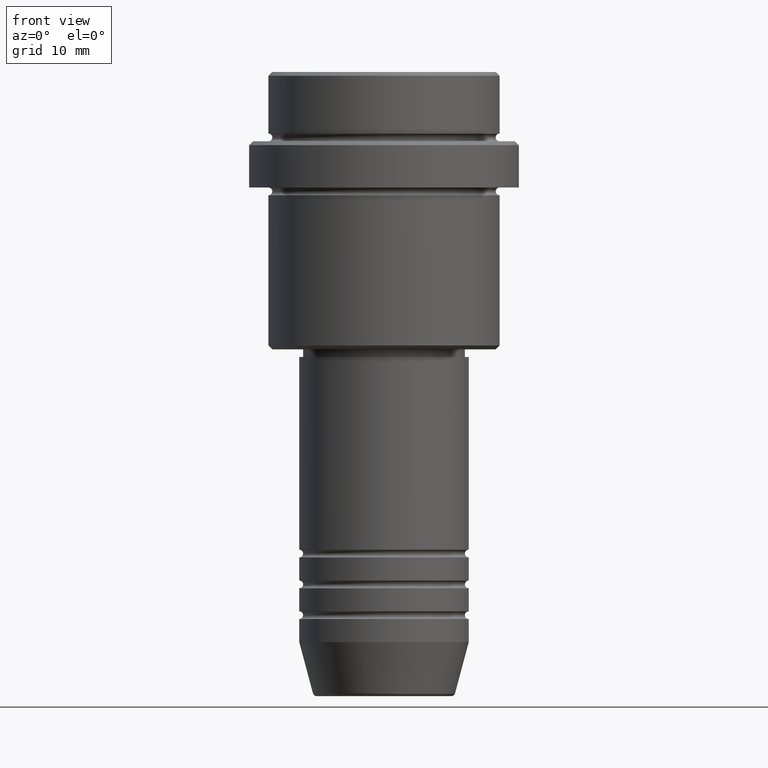
[diagram: clean part render]
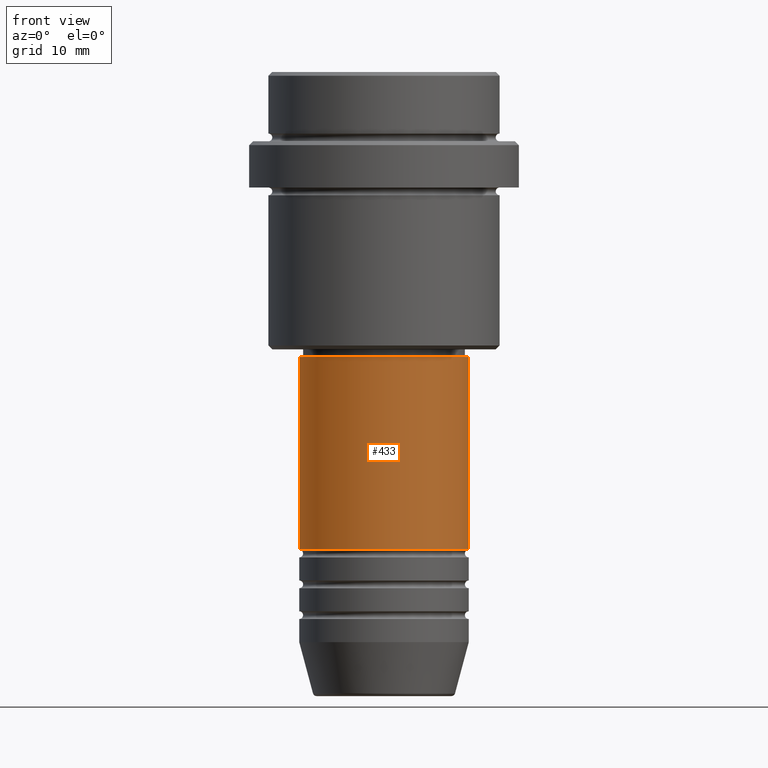
[diagram: same view with one face highlighted and labeled with its STEP entity id]
A machine part, front view. The second image highlights one B-rep face of the part: STEP entity #433.
In plain terms, the highlighted cylindrical surface (partial cylindrical patch) has radius 11 mm, axis along (-0, -0, 1).
Its self-contained STEP definition (entity closure, byte-faithful):
#19 = AXIS2_PLACEMENT_3D ( 'NONE', #98, #217, #1280 ) ;
#56 = DIRECTION ( 'NONE',  ( 1.000000000000000000, 0.000000000000000000, 0.000000000000000000 ) ) ;
#57 = ORIENTED_EDGE ( 'NONE', *, *, #1083, .F. ) ;
#98 = CARTESIAN_POINT ( 'NONE',  ( 0.000000000000000000, 0.000000000000000000, -37.00000000000000000 ) ) ;
#128 = EDGE_LOOP ( 'NONE', ( #57, #1345, #265, #556 ) ) ;
#169 = VERTEX_POINT ( 'NONE', #669 ) ;
#207 = CYLINDRICAL_SURFACE ( 'NONE', #236, 11.00000000000000000 ) ;
#217 = DIRECTION ( 'NONE',  ( -0.000000000000000000, -0.000000000000000000, 1.000000000000000000 ) ) ;
#236 = AXIS2_PLACEMENT_3D ( 'NONE', #411, #978, #1397 ) ;
#265 = ORIENTED_EDGE ( 'NONE', *, *, #854, .T. ) ;
#266 = VECTOR ( 'NONE', #285, 1000.000000000000000 ) ;
#285 = DIRECTION ( 'NONE',  ( -0.000000000000000000, -0.000000000000000000, 1.000000000000000000 ) ) ;
#310 = CARTESIAN_POINT ( 'NONE',  ( 10.99999999999999822, 0.000000000000000000, -37.00000000000000000 ) ) ;
#377 = VERTEX_POINT ( 'NONE', #310 ) ;
#384 = VECTOR ( 'NONE', #579, 1000.000000000000000 ) ;
#411 = CARTESIAN_POINT ( 'NONE',  ( 0.000000000000000000, 0.000000000000000000, 0.000000000000000000 ) ) ;
#433 = ADVANCED_FACE ( 'NONE', ( #1282 ), #207, .T. ) ;
#497 = AXIS2_PLACEMENT_3D ( 'NONE', #1263, #1362, #56 ) ;
#507 = CARTESIAN_POINT ( 'NONE',  ( -10.99999999999999822, 1.347111479062088207E-15, -37.00000000000000000 ) ) ;
#556 = ORIENTED_EDGE ( 'NONE', *, *, #1187, .F. ) ;
#579 = DIRECTION ( 'NONE',  ( -0.000000000000000000, -0.000000000000000000, 1.000000000000000000 ) ) ;
#601 = CARTESIAN_POINT ( 'NONE',  ( -11.00000000000000000, 1.347111479062088405E-15, 0.000000000000000000 ) ) ;
#669 = CARTESIAN_POINT ( 'NONE',  ( -11.00000000000000000, 1.347111479062088405E-15, -61.99999999999987921 ) ) ;
#818 = CIRCLE ( 'NONE', #19, 10.99999999999999822 ) ;
#838 = CIRCLE ( 'NONE', #497, 11.00000000000000000 ) ;
#854 = EDGE_CURVE ( 'NONE', #1338, #377, #1219, .T. ) ;
#957 = CARTESIAN_POINT ( 'NONE',  ( 11.00000000000000000, 0.000000000000000000, -61.99999999999987921 ) ) ;
#978 = DIRECTION ( 'NONE',  ( -0.000000000000000000, -0.000000000000000000, 1.000000000000000000 ) ) ;
#1083 = EDGE_CURVE ( 'NONE', #169, #1253, #1275, .T. ) ;
#1106 = CARTESIAN_POINT ( 'NONE',  ( 11.00000000000000000, 0.000000000000000000, 0.000000000000000000 ) ) ;
#1187 = EDGE_CURVE ( 'NONE', #1253, #377, #818, .T. ) ;
#1219 = LINE ( 'NONE', #1106, #384 ) ;
#1253 = VERTEX_POINT ( 'NONE', #507 ) ;
#1260 = EDGE_CURVE ( 'NONE', #169, #1338, #838, .T. ) ;
#1263 = CARTESIAN_POINT ( 'NONE',  ( 0.000000000000000000, 0.000000000000000000, -61.99999999999987921 ) ) ;
#1275 = LINE ( 'NONE', #601, #266 ) ;
#1280 = DIRECTION ( 'NONE',  ( 1.000000000000000000, 0.000000000000000000, 0.000000000000000000 ) ) ;
#1282 = FACE_OUTER_BOUND ( 'NONE', #128, .T. ) ;
#1338 = VERTEX_POINT ( 'NONE', #957 ) ;
#1345 = ORIENTED_EDGE ( 'NONE', *, *, #1260, .T. ) ;
#1362 = DIRECTION ( 'NONE',  ( -0.000000000000000000, -0.000000000000000000, 1.000000000000000000 ) ) ;
#1397 = DIRECTION ( 'NONE',  ( 1.000000000000000000, 0.000000000000000000, 0.000000000000000000 ) ) ;